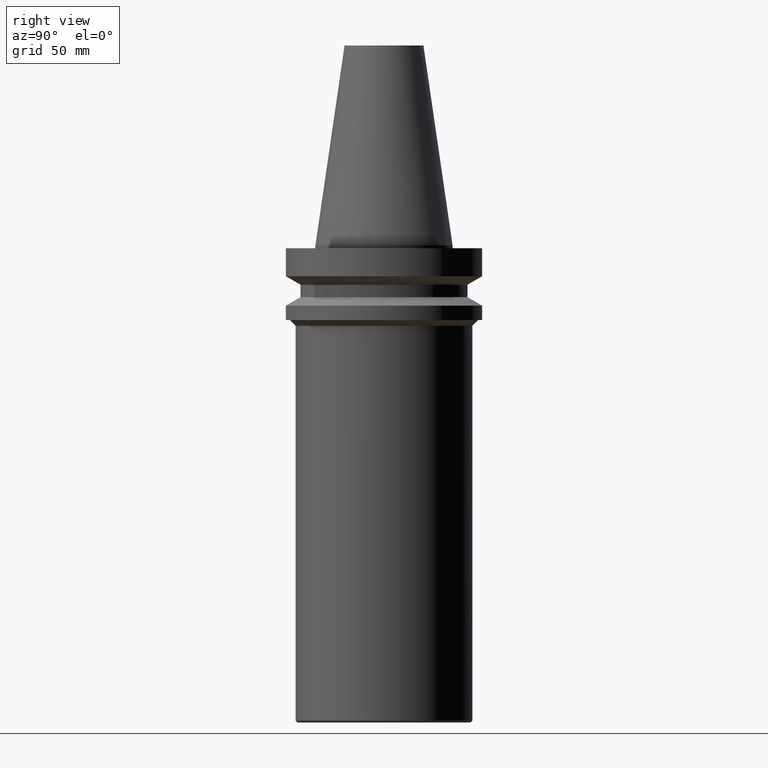
[diagram: clean part render]
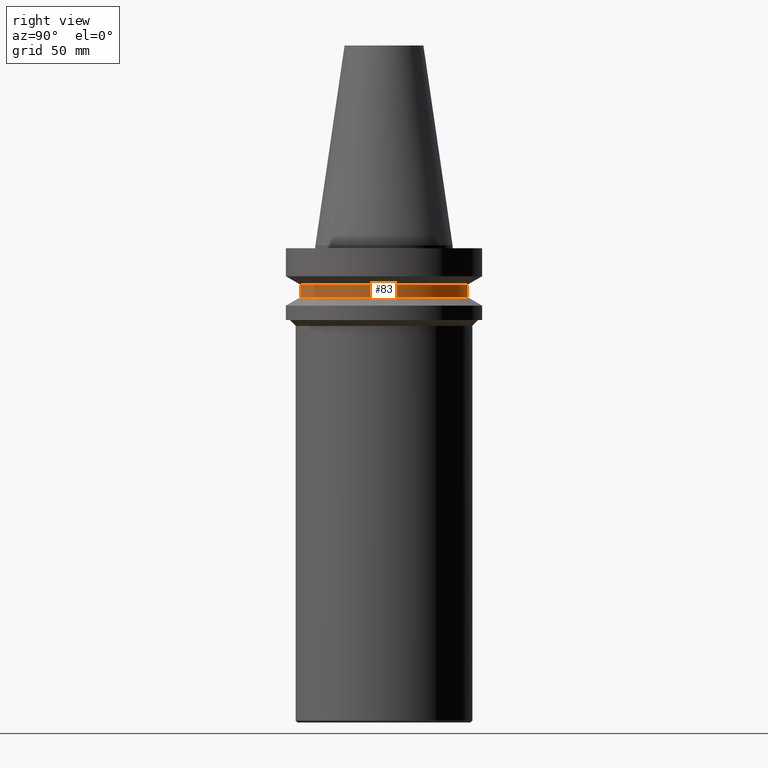
[diagram: same view with one face highlighted and labeled with its STEP entity id]
A machine part, right view. The second image highlights one B-rep face of the part: STEP entity #83.
In plain terms, the highlighted cylindrical surface (bore or boss wall) has radius 42.5 mm, axis along (0, 0, -1).
Its self-contained STEP definition (entity closure, byte-faithful):
#83=ADVANCED_FACE('',(#112,#113),#114,.T.);
#112=FACE_BOUND('',#152,.T.);
#113=FACE_BOUND('',#153,.T.);
#114=CYLINDRICAL_SURFACE('',#154,42.5000000000004);
#152=EDGE_LOOP('',(#208));
#153=EDGE_LOOP('',(#209));
#154=AXIS2_PLACEMENT_3D('',#210,#211,#212);
#208=ORIENTED_EDGE('',*,*,#246,.F.);
#209=ORIENTED_EDGE('',*,*,#245,.T.);
#210=CARTESIAN_POINT('',(1.42059028701093E-015,2.84118057402185E-015,-23.1999999999999));
#211=DIRECTION('',(6.12323399573677E-017,1.22464679914735E-016,-1.0));
#212=DIRECTION('',(-1.23259516440783E-032,1.0,1.22464679914735E-016));
#245=EDGE_CURVE('',#265,#265,#266,.T.);
#246=EDGE_CURVE('',#267,#267,#268,.T.);
#265=VERTEX_POINT('',#291);
#266=CIRCLE('',#292,42.5000000000004);
#267=VERTEX_POINT('',#293);
#268=CIRCLE('',#294,42.5000000000004);
#291=CARTESIAN_POINT('',(1.61468902700995E-015,42.5000000000004,-26.3698729810777));
#292=AXIS2_PLACEMENT_3D('',#324,#325,#326);
#293=CARTESIAN_POINT('',(1.2264915470119E-015,42.5000000000004,-20.0301270189221));
#294=AXIS2_PLACEMENT_3D('',#327,#328,#329);
#324=CARTESIAN_POINT('',(1.61468902700995E-015,3.22937805401991E-015,-26.3698729810777));
#325=DIRECTION('',(-6.12323399573677E-017,-1.22464679914735E-016,1.0));
#326=DIRECTION('',(-1.23259516440783E-032,1.0,1.22464679914735E-016));
#327=CARTESIAN_POINT('',(1.2264915470119E-015,2.45298309402379E-015,-20.0301270189221));
#328=DIRECTION('',(-6.12323399573677E-017,-1.22464679914735E-016,1.0));
#329=DIRECTION('',(-1.23259516440783E-032,1.0,1.22464679914735E-016));